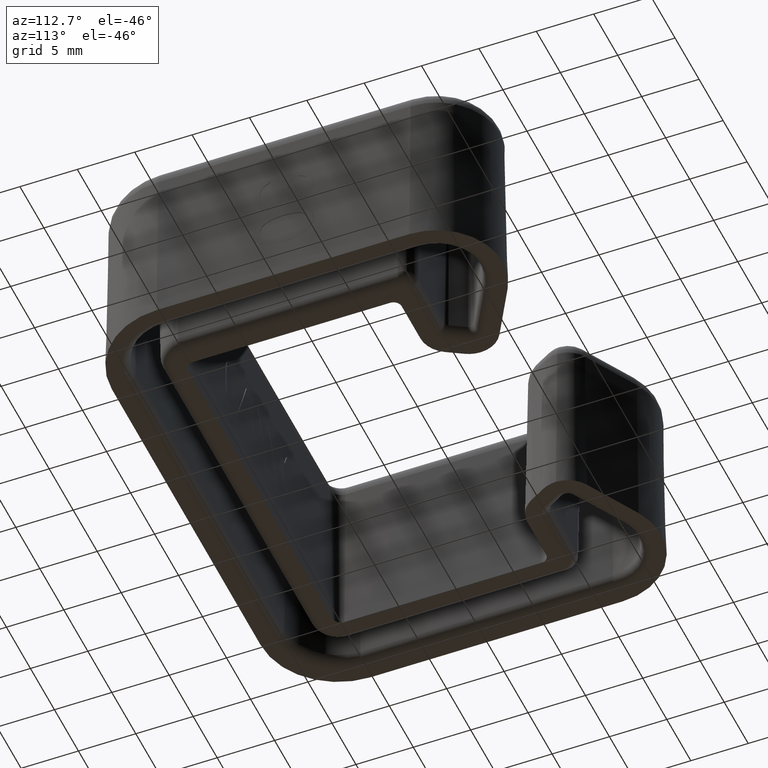
[diagram: clean part render]
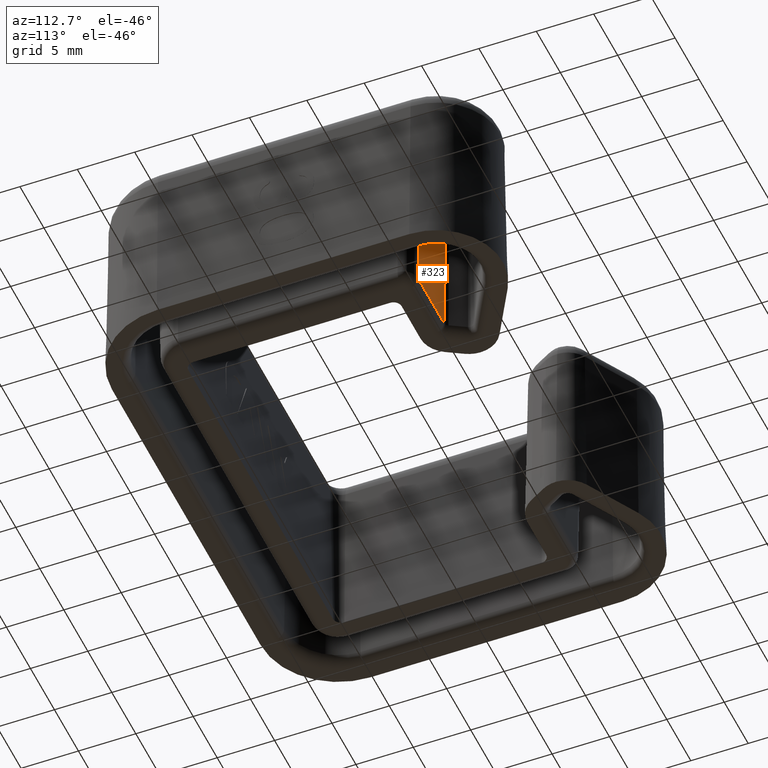
[diagram: same view with one face highlighted and labeled with its STEP entity id]
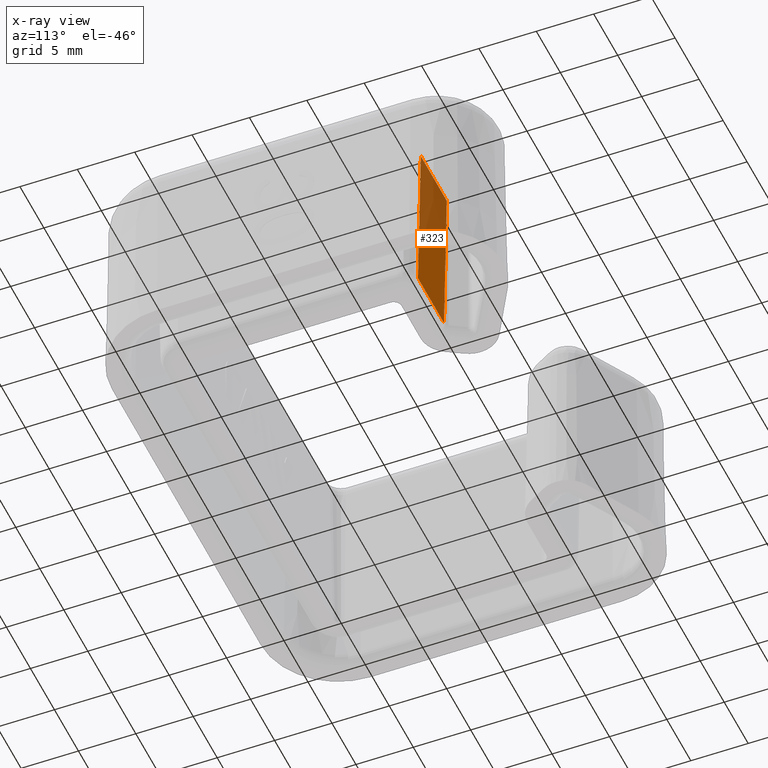
[diagram: x-ray of the same camera — body ghosted, the highlighted face saturated]
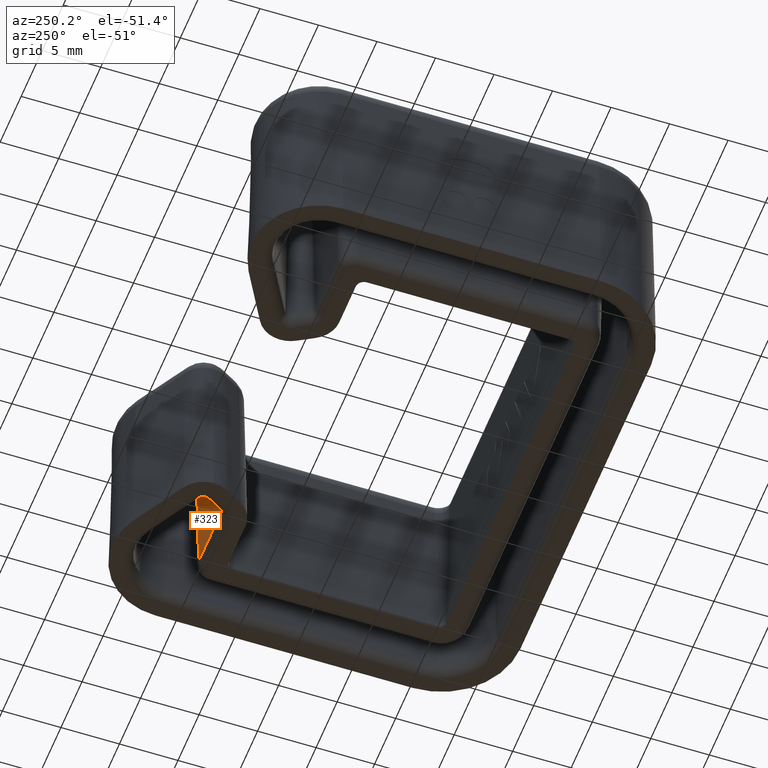
[diagram: same view with one face highlighted and labeled with its STEP entity id]
A machine part, auxiliary view. The second image highlights one B-rep face of the part: STEP entity #323.
The next image is the same camera in x-ray: the body ghosted, the highlighted face saturated — about 54% of this face is hidden behind the body in this view.
A second angle (auxiliary view) of the same face is appended — the face is thin or edge-on in the first view.
In plain terms, the highlighted planar face has unit normal (-0, 0.9998, -0.0175).
Its self-contained STEP definition (entity closure, byte-faithful):
#323=ADVANCED_FACE('',(#692),#693,.T.);
#692=FACE_OUTER_BOUND('',#1105,.T.);
#693=PLANE('',#1106);
#1105=EDGE_LOOP('',(#2698,#2699,#2700,#2701));
#1106=AXIS2_PLACEMENT_3D('',#2702,#2703,#2704);
#2698=ORIENTED_EDGE('',*,*,#3225,.F.);
#2699=ORIENTED_EDGE('',*,*,#3226,.T.);
#2700=ORIENTED_EDGE('',*,*,#3223,.T.);
#2701=ORIENTED_EDGE('',*,*,#3227,.T.);
#2702=CARTESIAN_POINT('',(15.4999999999982,25.1249255972024,15.0));
#2703=DIRECTION('',(-1.00958817009179E-28,0.999847695156391,-0.0174524064372835));
#2704=DIRECTION('',(0.0,0.0174524064372835,0.999847695156391));
#3223=EDGE_CURVE('',#3601,#3936,#3937,.T.);
#3225=EDGE_CURVE('',#3939,#3940,#3941,.T.);
#3226=EDGE_CURVE('',#3939,#3601,#3942,.F.);
#3227=EDGE_CURVE('',#3936,#3940,#3943,.F.);
#3601=VERTEX_POINT('',#5231);
#3936=VERTEX_POINT('',#5675);
#3937=LINE('',#5676,#5677);
#3939=VERTEX_POINT('',#5679);
#3940=VERTEX_POINT('',#5680);
#3941=LINE('',#5681,#5682);
#3942=LINE('',#5683,#5684);
#3943=LINE('',#5685,#5686);
#5231=CARTESIAN_POINT('',(11.133771324028,24.8802500553199,0.98254759356272));
#5675=CARTESIAN_POINT('',(11.133771324028,25.1249255972024,15.0));
#5676=CARTESIAN_POINT('',(11.133771324028,25.1249255972024,15.0));
#5677=VECTOR('',#6315,1000.0);
#5679=CARTESIAN_POINT('',(16.5499999999872,24.8802500553199,0.982547593562718));
#5680=CARTESIAN_POINT('',(16.5499999999872,25.1249255972024,15.0));
#5681=CARTESIAN_POINT('',(16.5499999999872,25.1249255972024,15.0));
#5682=VECTOR('',#6319,1000.0);
#5683=CARTESIAN_POINT('',(11.133771324028,24.8802500553199,0.982547593562716));
#5684=VECTOR('',#6320,1000.0);
#5685=CARTESIAN_POINT('',(15.4999999999982,25.1249255972024,15.0));
#5686=VECTOR('',#6321,1000.0);
#6315=DIRECTION('',(-1.51375495795223E-16,0.0174524064372835,0.999847695156391));
#6319=DIRECTION('',(-1.76224270597126E-30,0.0174524064372835,0.999847695156391));
#6320=DIRECTION('',(1.0,1.00974195868289E-28,0.0));
#6321=DIRECTION('',(-1.0,-1.00974195868289E-28,0.0));